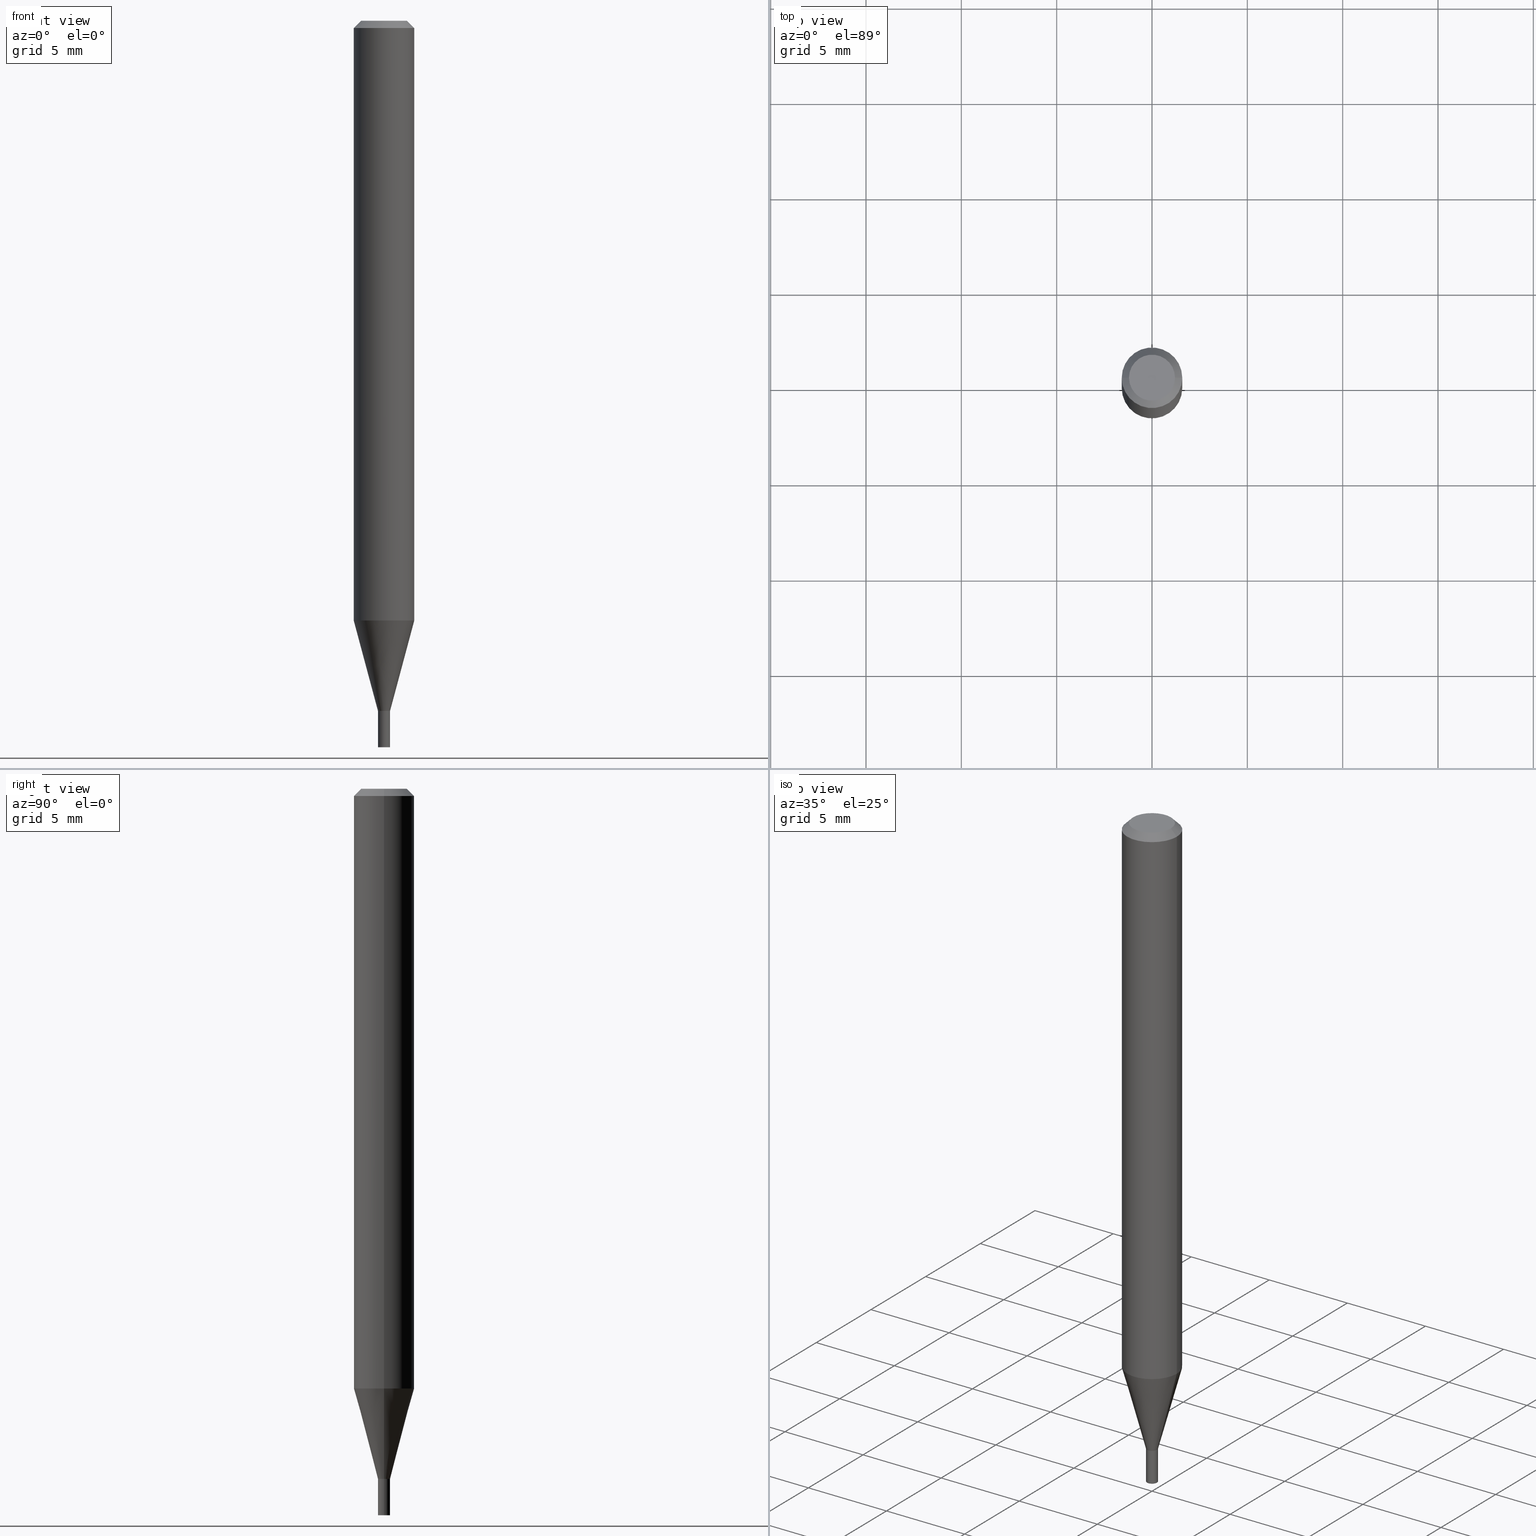
[diagram: canonical four-view strip — front | top / right | iso, engineering-drawing reading convention]
A machine part, canonical four-view strip (front | top / right | iso — engineering-drawing reading convention). The complete STEP part file that produces these views, byte-faithful:
ISO-10303-21;
HEADER;
FILE_DESCRIPTION (( 'STEP AP203' ),
    '1' );
FILE_NAME ('04131.STEP',
    '2024-03-14T17:03:53',
    ( '' ),
    ( '' ),
    'SwSTEP 2.0',
    'SolidWorks 2023',
    '' );
FILE_SCHEMA (( 'CONFIG_CONTROL_DESIGN' ));
ENDSEC;

DATA;
#1 = DATE_TIME_ROLE ( 'creation_date' ) ;
#2 = DIRECTION ( 'NONE',  ( 1.000000000000000000, -6.982962677686270655E-15, 0.000000000000000000 ) ) ;
#3 = DIRECTION ( 'NONE',  ( -2.445468806185136877E-29, 3.491481338843145188E-15, 1.000000000000000000 ) ) ;
#4 = DATE_AND_TIME ( #195, #341 ) ;
#5 = FACE_OUTER_BOUND ( 'NONE', #133, .T. ) ;
#6 = VECTOR ( 'NONE', #405, 39.37007874015748143 ) ;
#7 = ADVANCED_FACE ( 'NONE', ( #67 ), #154, .F. ) ;
#8 = LOCAL_TIME ( 13, 3, 53.00000000000000000, #443 ) ;
#9 = PERSON_AND_ORGANIZATION_ROLE ( 'design_supplier' ) ;
#10 = DIRECTION ( 'NONE',  ( -2.445468806185136597E-29, 3.491481338843145583E-15, 1.000000000000000000 ) ) ;
#11 = CALENDAR_DATE ( 2024, 14, 3 ) ;
#12 = ORIENTED_EDGE ( 'NONE', *, *, #215, .F. ) ;
#13 = PLANE ( 'NONE',  #208 ) ;
#14 = FACE_OUTER_BOUND ( 'NONE', #175, .T. ) ;
#15 = ORIENTED_EDGE ( 'NONE', *, *, #254, .F. ) ;
#16 = AXIS2_PLACEMENT_3D ( 'NONE', #239, #441, #351 ) ;
#17 = CYLINDRICAL_SURFACE ( 'NONE', #344, 0.01249999999999992610 ) ;
#18 = ORIENTED_EDGE ( 'NONE', *, *, #286, .T. ) ;
#19 = ORIENTED_EDGE ( 'NONE', *, *, #124, .T. ) ;
#20 = FACE_OUTER_BOUND ( 'NONE', #287, .T. ) ;
#21 = EDGE_LOOP ( 'NONE', ( #406, #312 ) ) ;
#22 = PRODUCT_RELATED_PRODUCT_CATEGORY ( 'detail', '', ( #348 ) ) ;
#23 = DIRECTION ( 'NONE',  ( 1.000000000000000000, -6.982962677686254089E-15, 0.000000000000000000 ) ) ;
#24 = CLOSED_SHELL ( 'NONE', ( #246, #308, #205, #76, #232, #199, #50, #334, #252, #7, #37, #292 ) ) ;
#25 = AXIS2_PLACEMENT_3D ( 'NONE', #185, #425, #430 ) ;
#26 = EDGE_LOOP ( 'NONE', ( #15, #54, #134, #206 ) ) ;
#27 = LINE ( 'NONE', #253, #135 ) ;
#28 = DIRECTION ( 'NONE',  ( -2.445468806185136877E-29, 3.491481338843145188E-15, 1.000000000000000000 ) ) ;
#29 = CARTESIAN_POINT ( 'NONE',  ( -0.01249999999999965375, -4.886543065881473334E-15, -1.425000000000000266 ) ) ;
#30 = DIRECTION ( 'NONE',  ( -2.438088387897960049E-29, 3.491481338843145188E-15, 1.000000000000000000 ) ) ;
#31 = PERSON_AND_ORGANIZATION_ROLE ( 'design_owner' ) ;
#32 = AXIS2_PLACEMENT_3D ( 'NONE', #316, #42, #280 ) ;
#33 = CC_DESIGN_SECURITY_CLASSIFICATION ( #218, ( #359 ) ) ;
#34 = ORIENTED_EDGE ( 'NONE', *, *, #305, .F. ) ;
#35 = DIRECTION ( 'NONE',  ( -2.445468806185136597E-29, 3.491481338843145583E-15, 1.000000000000000000 ) ) ;
#36 = PERSON_AND_ORGANIZATION_ROLE ( 'classification_officer' ) ;
#37 = ADVANCED_FACE ( 'NONE', ( #327 ), #271, .T. ) ;
#38 = CARTESIAN_POINT ( 'NONE',  ( -0.01250000000000000069, -5.017473616088089257E-15, -1.425000000000000266 ) ) ;
#39 = DIRECTION ( 'NONE',  ( 0.000000000000000000, 0.000000000000000000, 1.000000000000000000 ) ) ;
#40 = CC_DESIGN_DATE_AND_TIME_ASSIGNMENT ( #261, #1, ( #53 ) ) ;
#41 = AXIS2_PLACEMENT_3D ( 'NONE', #336, #140, #114 ) ;
#42 = DIRECTION ( 'NONE',  ( 2.438088387897960049E-29, -3.491481338843145188E-15, -1.000000000000000000 ) ) ;
#43 = APPROVAL_STATUS ( 'not_yet_approved' ) ;
#44 = MANIFOLD_SOLID_BREP ( 'Body-Move/Copy2[2]', #24 ) ;
#45 = AXIS2_PLACEMENT_3D ( 'NONE', #115, #164, #374 ) ;
#46 = AXIS2_PLACEMENT_3D ( 'NONE', #391, #318, #23 ) ;
#47 = CARTESIAN_POINT ( 'NONE',  ( 3.668203209277705088E-31, -5.237222008264718399E-17, -0.01499999999999999944 ) ) ;
#48 = ORIENTED_EDGE ( 'NONE', *, *, #462, .F. ) ;
#49 = CARTESIAN_POINT ( 'NONE',  ( -0.01249999999999992610, 8.881784197001199815E-17, -6.148668862818595618E-31 ) ) ;
#50 = ADVANCED_FACE ( 'NONE', ( #404 ), #221, .T. ) ;
#51 = ORIENTED_EDGE ( 'NONE', *, *, #462, .T. ) ;
#52 = DIRECTION ( 'NONE',  ( -2.445468806185136597E-29, 3.491481338843145583E-15, 1.000000000000000000 ) ) ;
#53 = PRODUCT_DEFINITION ( 'UNKNOWN', '', #359, #259 ) ;
#54 = ORIENTED_EDGE ( 'NONE', *, *, #335, .T. ) ;
#55 = CIRCLE ( 'NONE', #376, 0.04749999999999999362 ) ;
#56 = DIRECTION ( 'NONE',  ( -2.445468806185136877E-29, 3.491481338843145188E-15, 1.000000000000000000 ) ) ;
#57 = ORIENTED_EDGE ( 'NONE', *, *, #125, .T. ) ;
#58 = CARTESIAN_POINT ( 'NONE',  ( 0.01249999999999965375, -5.062647941322559142E-15, -1.425000000000000266 ) ) ;
#59 = ORIENTED_EDGE ( 'NONE', *, *, #79, .T. ) ;
#60 = LINE ( 'NONE', #214, #437 ) ;
#61 = ORIENTED_EDGE ( 'NONE', *, *, #325, .T. ) ;
#62 = AXIS2_PLACEMENT_3D ( 'NONE', #227, #396, #192 ) ;
#63 = APPROVAL ( #402, 'UNSPECIFIED' ) ;
#64 = CARTESIAN_POINT ( 'NONE',  ( 3.484793048813820547E-29, -4.975360907851483175E-15, -1.425000000000000266 ) ) ;
#65 = AXIS2_PLACEMENT_3D ( 'NONE', #333, #436, #2 ) ;
#66 = CC_DESIGN_APPROVAL ( #152, ( #359 ) ) ;
#67 = FACE_OUTER_BOUND ( 'NONE', #21, .T. ) ;
#68 = PERSON ( 'UNSPECIFIED', 'UNSPECIFIED', 'UNSPECIFIED', ('UNSPECIFIED'), ('UNSPECIFIED'), ('UNSPECIFIED') ) ;
#69 = LINE ( 'NONE', #29, #331 ) ;
#70 = CARTESIAN_POINT ( 'NONE',  ( 3.484793048813819426E-29, -4.975360907851482386E-15, -1.425000000000000044 ) ) ;
#71 = APPROVAL_DATE_TIME ( #340, #63 ) ;
#72 = APPLICATION_CONTEXT ( 'configuration controlled 3d designs of mechanical parts and assemblies' ) ;
#73 = DIRECTION ( 'NONE',  ( 1.000000000000000000, -6.982962677686265922E-15, 4.876176775795935793E-29 ) ) ;
#74 = AXIS2_PLACEMENT_3D ( 'NONE', #427, #30, #73 ) ;
#75 = CARTESIAN_POINT ( 'NONE',  ( 0.06250000000000000000, -4.364351673553916694E-16, 3.047610484872459871E-30 ) ) ;
#76 = ADVANCED_FACE ( 'NONE', ( #181 ), #363, .T. ) ;
#77 = CARTESIAN_POINT ( 'NONE',  ( 0.01200000000000000198, -5.059156459983717713E-15, -1.425000000000000044 ) ) ;
#78 = CC_DESIGN_DATE_AND_TIME_ASSIGNMENT ( #435, #297, ( #218 ) ) ;
#79 = EDGE_CURVE ( 'NONE', #421, #211, #101, .T. ) ;
#80 = DIRECTION ( 'NONE',  ( -1.000000000000000000, 6.982962677686266711E-15, 0.000000000000000000 ) ) ;
#81 = UNCERTAINTY_MEASURE_WITH_UNIT (LENGTH_MEASURE( 1.000000000000000082E-05 ), #328, 'distance_accuracy_value', 'NONE');
#82 = SECURITY_CLASSIFICATION_LEVEL ( 'unclassified' ) ;
#83 = AXIS2_PLACEMENT_3D ( 'NONE', #70, #220, #298 ) ;
#84 = DIRECTION ( 'NONE',  ( 1.000000000000000000, -6.982962677686254089E-15, 0.000000000000000000 ) ) ;
#85 = VERTEX_POINT ( 'NONE', #250 ) ;
#86 = ORIENTED_EDGE ( 'NONE', *, *, #272, .F. ) ;
#87 = AXIS2_PLACEMENT_3D ( 'NONE', #186, #434, #461 ) ;
#88 = CARTESIAN_POINT ( 'NONE',  ( 3.668203209277704895E-29, -5.237222008264718177E-15, -1.500000000000000222 ) ) ;
#89 = ORIENTED_EDGE ( 'NONE', *, *, #309, .F. ) ;
#90 = CARTESIAN_POINT ( 'NONE',  ( 0.000000000000000000, 0.000000000000000000, 0.000000000000000000 ) ) ;
#91 = ADVANCED_FACE ( 'NONE', ( #263 ), #258, .F. ) ;
#92 = EDGE_LOOP ( 'NONE', ( #130, #451, #307, #457 ) ) ;
#93 = DIRECTION ( 'NONE',  ( -2.445468806185136597E-29, 3.491481338843145583E-15, 1.000000000000000000 ) ) ;
#94 = ORIENTED_EDGE ( 'NONE', *, *, #305, .T. ) ;
#95 = AXIS2_PLACEMENT_3D ( 'NONE', #88, #450, #380 ) ;
#96 =( NAMED_UNIT ( * ) SI_UNIT ( $, .STERADIAN. ) SOLID_ANGLE_UNIT ( ) );
#97 = ORIENTED_EDGE ( 'NONE', *, *, #162, .T. ) ;
#98 = DIRECTION ( 'NONE',  ( 1.000000000000000000, -6.982962677686261189E-15, 0.000000000000000000 ) ) ;
#99 = EDGE_LOOP ( 'NONE', ( #410, #379 ) ) ;
#100 = LENGTH_MEASURE_WITH_UNIT ( LENGTH_MEASURE( 0.02539999999999999897 ), #458 );
#101 = LINE ( 'NONE', #257, #400 ) ;
#102 = APPROVAL ( #337, 'UNSPECIFIED' ) ;
#103 = AXIS2_PLACEMENT_3D ( 'NONE', #159, #171, #80 ) ;
#104 = FACE_OUTER_BOUND ( 'NONE', #416, .T. ) ;
#105 = CC_DESIGN_APPROVAL ( #63, ( #53 ) ) ;
#106 = DIRECTION ( 'NONE',  ( 1.000000000000000000, -6.982962677686267499E-15, 4.876176775795936353E-29 ) ) ;
#107 = DIRECTION ( 'NONE',  ( 1.000000000000000000, -6.982962677686270655E-15, 0.000000000000000000 ) ) ;
#108 = DIRECTION ( 'NONE',  ( -2.445468806185136597E-29, 3.491481338843145583E-15, 1.000000000000000000 ) ) ;
#109 = COORDINATED_UNIVERSAL_TIME_OFFSET ( 5, 0, .BEHIND. ) ;
#110 = CARTESIAN_POINT ( 'NONE',  ( 0.06250000000000000000, -4.760276787694811076E-15, -1.238397459621555452 ) ) ;
#111 = PERSON_AND_ORGANIZATION ( #68, #465 ) ;
#112 = CIRCLE ( 'NONE', #277, 0.04749999999999999362 ) ;
#113 = AXIS2_PLACEMENT_3D ( 'NONE', #182, #219, #107 ) ;
#114 = DIRECTION ( 'NONE',  ( 1.000000000000000000, -6.982962677686266711E-15, 4.876176775795935793E-29 ) ) ;
#115 = CARTESIAN_POINT ( 'NONE',  ( 0.000000000000000000, 0.000000000000000000, 0.000000000000000000 ) ) ;
#116 = ORIENTED_EDGE ( 'NONE', *, *, #368, .F. ) ;
#117 = PRODUCT_DEFINITION_SHAPE ( 'NONE', 'NONE',  #53 ) ;
#118 = CC_DESIGN_PERSON_AND_ORGANIZATION_ASSIGNMENT ( #111, #224, ( #53 ) ) ;
#119 = CALENDAR_DATE ( 2024, 14, 3 ) ;
#120 = CARTESIAN_POINT ( 'NONE',  ( -0.06250000000000000000, -1.744017710360970627E-15, -0.01499999999999999944 ) ) ;
#121 = VERTEX_POINT ( 'NONE', #300 ) ;
#122 = AXIS2_PLACEMENT_3D ( 'NONE', #439, #52, #382 ) ;
#123 = VERTEX_POINT ( 'NONE', #291 ) ;
#124 = EDGE_CURVE ( 'NONE', #419, #448, #112, .T. ) ;
#125 = EDGE_CURVE ( 'NONE', #267, #231, #398, .T. ) ;
#126 = CARTESIAN_POINT ( 'NONE',  ( -0.01250000000000000069, -5.017473616088089257E-15, -1.500000000000000222 ) ) ;
#127 = ORIENTED_EDGE ( 'NONE', *, *, #286, .F. ) ;
#128 = APPROVAL_PERSON_ORGANIZATION ( #229, #63, #226 ) ;
#129 = DIRECTION ( 'NONE',  ( 1.000000000000000000, -6.982962677686254089E-15, 0.000000000000000000 ) ) ;
#130 = ORIENTED_EDGE ( 'NONE', *, *, #125, .F. ) ;
#131 = EDGE_CURVE ( 'NONE', #321, #121, #196, .T. ) ;
#132 = CARTESIAN_POINT ( 'NONE',  ( 3.483570314410727746E-29, -4.973615167182062460E-15, -1.424500000000000322 ) ) ;
#133 = EDGE_LOOP ( 'NONE', ( #168, #94, #283, #203 ) ) ;
#134 = ORIENTED_EDGE ( 'NONE', *, *, #150, .T. ) ;
#135 = VECTOR ( 'NONE', #249, 39.37007874015748143 ) ;
#136 = DIRECTION ( 'NONE',  ( 1.000000000000000000, -6.982962677686254089E-15, 0.000000000000000000 ) ) ;
#137 = CC_DESIGN_PERSON_AND_ORGANIZATION_ASSIGNMENT ( #256, #31, ( #348 ) ) ;
#138 = VERTEX_POINT ( 'NONE', #110 ) ;
#139 = DIRECTION ( 'NONE',  ( 1.000000000000000000, -6.982962677686266711E-15, 0.000000000000000000 ) ) ;
#140 = DIRECTION ( 'NONE',  ( -2.445468806185136597E-29, 3.491481338843145583E-15, 1.000000000000000000 ) ) ;
#141 = CARTESIAN_POINT ( 'NONE',  ( 0.01250000000000000069, -5.062647941322562298E-15, -1.425000000000000266 ) ) ;
#142 = DIRECTION ( 'NONE',  ( -2.445468806185136877E-29, 3.491481338843145188E-15, 1.000000000000000000 ) ) ;
#143 = ADVANCED_BREP_SHAPE_REPRESENTATION ( '04131', ( #362, #44, #444 ), #156 ) ;
#144 = CIRCLE ( 'NONE', #95, 0.01250000000000000069 ) ;
#145 = CARTESIAN_POINT ( 'NONE',  ( -0.01250000000000019672, -4.884797325212047886E-15, -1.424500000000000322 ) ) ;
#146 = LOCAL_TIME ( 13, 3, 53.00000000000000000, #371 ) ;
#147 = CARTESIAN_POINT ( 'NONE',  ( 3.484793048813819426E-29, -4.975360907851482386E-15, -1.425000000000000044 ) ) ;
#148 = EDGE_CURVE ( 'NONE', #138, #446, #225, .T. ) ;
#149 = APPROVAL_DATE_TIME ( #299, #152 ) ;
#150 = EDGE_CURVE ( 'NONE', #321, #245, #293, .T. ) ;
#151 = DIRECTION ( 'NONE',  ( -2.445468806185136597E-29, 3.491481338843145583E-15, 1.000000000000000000 ) ) ;
#152 = APPROVAL ( #43, 'UNSPECIFIED' ) ;
#153 = APPROVAL_ROLE ( '' ) ;
#154 = PLANE ( 'NONE',  #74 ) ;
#155 = VECTOR ( 'NONE', #296, 39.37007874015748854 ) ;
#156 =( GEOMETRIC_REPRESENTATION_CONTEXT ( 3 ) GLOBAL_UNCERTAINTY_ASSIGNED_CONTEXT ( ( #81 ) ) GLOBAL_UNIT_ASSIGNED_CONTEXT ( ( #328, #210, #96 ) ) REPRESENTATION_CONTEXT ( 'NONE', 'WORKASPACE' ) );
#157 = PLANE ( 'NONE',  #32 ) ;
#158 = COORDINATED_UNIVERSAL_TIME_OFFSET ( 5, 0, .BEHIND. ) ;
#159 = CARTESIAN_POINT ( 'NONE',  ( 3.668203209277705088E-31, -5.237222008264718399E-17, -0.01499999999999999944 ) ) ;
#160 = APPROVAL_ROLE ( '' ) ;
#161 = CONICAL_SURFACE ( 'NONE', #413, 0.01249999999999965375, 0.2617993877991500740 ) ;
#162 = EDGE_CURVE ( 'NONE', #419, #211, #372, .T. ) ;
#163 = ORIENTED_EDGE ( 'NONE', *, *, #124, .F. ) ;
#164 = DIRECTION ( 'NONE',  ( -2.445468806185136597E-29, 3.491481338843145583E-15, 1.000000000000000000 ) ) ;
#165 = ORIENTED_EDGE ( 'NONE', *, *, #184, .F. ) ;
#166 = DIRECTION ( 'NONE',  ( -2.445468806185136597E-29, 3.491481338843145583E-15, 1.000000000000000000 ) ) ;
#167 = EDGE_CURVE ( 'NONE', #123, #345, #183, .T. ) ;
#168 = ORIENTED_EDGE ( 'NONE', *, *, #174, .F. ) ;
#169 = CIRCLE ( 'NONE', #113, 0.06250000000000000000 ) ;
#170 = ADVANCED_FACE ( 'NONE', ( #399 ), #459, .T. ) ;
#171 = DIRECTION ( 'NONE',  ( 2.445468806185136597E-29, -3.491481338843145583E-15, -1.000000000000000000 ) ) ;
#172 = ORIENTED_EDGE ( 'NONE', *, *, #167, .F. ) ;
#173 = EDGE_LOOP ( 'NONE', ( #18, #57, #86, #172 ) ) ;
#174 = EDGE_CURVE ( 'NONE', #448, #419, #55, .T. ) ;
#175 = EDGE_LOOP ( 'NONE', ( #383, #61, #317, #48 ) ) ;
#176 = VECTOR ( 'NONE', #28, 39.37007874015748143 ) ;
#177 = CIRCLE ( 'NONE', #200, 0.01250000000000019672 ) ;
#178 = DIRECTION ( 'NONE',  ( 1.000000000000000000, -6.982962677686294321E-15, 0.000000000000000000 ) ) ;
#179 = EDGE_CURVE ( 'NONE', #138, #421, #235, .T. ) ;
#180 = EDGE_CURVE ( 'NONE', #424, #245, #357, .T. ) ;
#181 = FACE_OUTER_BOUND ( 'NONE', #289, .T. ) ;
#182 = CARTESIAN_POINT ( 'NONE',  ( 3.028462357163431359E-29, -4.323841620339419407E-15, -1.238397459621555452 ) ) ;
#183 = LINE ( 'NONE', #370, #176 ) ;
#184 = EDGE_CURVE ( 'NONE', #267, #123, #302, .T. ) ;
#185 = CARTESIAN_POINT ( 'NONE',  ( 3.668203209277705088E-31, -5.237222008264718399E-17, -0.01499999999999999944 ) ) ;
#186 = CARTESIAN_POINT ( 'NONE',  ( 0.000000000000000000, 0.000000000000000000, 0.000000000000000000 ) ) ;
#187 = APPLICATION_CONTEXT ( 'configuration controlled 3d designs of mechanical parts and assemblies' ) ;
#188 = CIRCLE ( 'NONE', #217, 0.06250000000000000000 ) ;
#189 = CALENDAR_DATE ( 2024, 14, 3 ) ;
#190 = VECTOR ( 'NONE', #56, 39.37007874015748143 ) ;
#191 = DIRECTION ( 'NONE',  ( 1.000000000000000000, -6.982962677686267499E-15, 4.852736867747366768E-29 ) ) ;
#192 = DIRECTION ( 'NONE',  ( 1.000000000000000000, -6.982962677686265922E-15, 4.876176775795935793E-29 ) ) ;
#193 = PERSON_AND_ORGANIZATION_ROLE ( 'creator' ) ;
#194 = DIRECTION ( 'NONE',  ( -1.000000000000000000, 6.982962677686265922E-15, -4.876176775795935793E-29 ) ) ;
#195 = CALENDAR_DATE ( 2024, 14, 3 ) ;
#196 = CIRCLE ( 'NONE', #411, 0.01200000000000000198 ) ;
#197 = DIRECTION ( 'NONE',  ( 1.000000000000000000, -6.982962677686266711E-15, 0.000000000000000000 ) ) ;
#198 = PERSON_AND_ORGANIZATION ( #68, #465 ) ;
#199 = ADVANCED_FACE ( 'NONE', ( #202 ), #161, .T. ) ;
#200 = AXIS2_PLACEMENT_3D ( 'NONE', #323, #389, #98 ) ;
#201 = ORIENTED_EDGE ( 'NONE', *, *, #236, .F. ) ;
#202 = FACE_OUTER_BOUND ( 'NONE', #442, .T. ) ;
#203 = ORIENTED_EDGE ( 'NONE', *, *, #162, .F. ) ;
#204 = CYLINDRICAL_SURFACE ( 'NONE', #45, 0.01249999999999992610 ) ;
#205 = ADVANCED_FACE ( 'NONE', ( #5 ), #385, .T. ) ;
#206 = ORIENTED_EDGE ( 'NONE', *, *, #180, .F. ) ;
#207 = FACE_OUTER_BOUND ( 'NONE', #173, .T. ) ;
#208 = AXIS2_PLACEMENT_3D ( 'NONE', #310, #270, #194 ) ;
#209 = ORIENTED_EDGE ( 'NONE', *, *, #418, .T. ) ;
#210 =( NAMED_UNIT ( * ) PLANE_ANGLE_UNIT ( ) SI_UNIT ( $, .RADIAN. ) );
#211 = VERTEX_POINT ( 'NONE', #120 ) ;
#212 = DIRECTION ( 'NONE',  ( -2.445468806185136597E-29, 3.491481338843145583E-15, 1.000000000000000000 ) ) ;
#213 = ORIENTED_EDGE ( 'NONE', *, *, #301, .T. ) ;
#214 = CARTESIAN_POINT ( 'NONE',  ( 0.01249999999999965375, -5.062647941322559142E-15, -1.425000000000000266 ) ) ;
#215 = EDGE_CURVE ( 'NONE', #446, #211, #188, .T. ) ;
#216 = ORIENTED_EDGE ( 'NONE', *, *, #179, .T. ) ;
#217 = AXIS2_PLACEMENT_3D ( 'NONE', #47, #166, #197 ) ;
#218 = SECURITY_CLASSIFICATION ( '', '', #82 ) ;
#219 = DIRECTION ( 'NONE',  ( -2.445468806185136597E-29, 3.491481338843145583E-15, 1.000000000000000000 ) ) ;
#220 = DIRECTION ( 'NONE',  ( -2.445468806185136597E-29, 3.491481338843145583E-15, 1.000000000000000000 ) ) ;
#221 = CYLINDRICAL_SURFACE ( 'NONE', #87, 0.06250000000000000000 ) ;
#222 = PERSON_AND_ORGANIZATION ( #68, #465 ) ;
#223 = DIRECTION ( 'NONE',  ( -2.445468806185136597E-29, 3.491481338843145583E-15, 1.000000000000000000 ) ) ;
#224 = PERSON_AND_ORGANIZATION_ROLE ( 'creator' ) ;
#225 = LINE ( 'NONE', #75, #330 ) ;
#226 = APPROVAL_ROLE ( '' ) ;
#227 = CARTESIAN_POINT ( 'NONE',  ( 3.576687321579069994E-29, -5.368277968210015545E-15, -1.500000000000000222 ) ) ;
#228 = DIRECTION ( 'NONE',  ( -0.7071067811869503617, 7.493145998871808820E-15, 0.7071067811861444508 ) ) ;
#229 = PERSON_AND_ORGANIZATION ( #68, #465 ) ;
#230 = CIRCLE ( 'NONE', #16, 0.01250000000000000069 ) ;
#231 = VERTEX_POINT ( 'NONE', #38 ) ;
#232 = ADVANCED_FACE ( 'NONE', ( #14 ), #276, .T. ) ;
#233 = ORIENTED_EDGE ( 'NONE', *, *, #150, .F. ) ;
#234 = DIRECTION ( 'NONE',  ( -2.445468806185136597E-29, 3.491481338843145583E-15, 1.000000000000000000 ) ) ;
#235 = CIRCLE ( 'NONE', #65, 0.06250000000000000000 ) ;
#236 = EDGE_CURVE ( 'NONE', #85, #424, #377, .T. ) ;
#237 = CARTESIAN_POINT ( 'NONE',  ( 0.01250000000000019672, -5.060902200653141583E-15, -1.424500000000000322 ) ) ;
#238 = ORIENTED_EDGE ( 'NONE', *, *, #79, .F. ) ;
#239 = CARTESIAN_POINT ( 'NONE',  ( 3.484793048813820547E-29, -4.975360907851483175E-15, -1.425000000000000266 ) ) ;
#240 = ORIENTED_EDGE ( 'NONE', *, *, #180, .T. ) ;
#241 = DIRECTION ( 'NONE',  ( -2.445468806185136597E-29, 3.491481338843145583E-15, 1.000000000000000000 ) ) ;
#242 = VECTOR ( 'NONE', #228, 39.37007874015748854 ) ;
#243 = ORIENTED_EDGE ( 'NONE', *, *, #148, .T. ) ;
#244 = CC_DESIGN_APPROVAL ( #102, ( #218 ) ) ;
#245 = VERTEX_POINT ( 'NONE', #237 ) ;
#246 = ADVANCED_FACE ( 'NONE', ( #313 ), #204, .F. ) ;
#247 = DIRECTION ( 'NONE',  ( -2.445468806185136597E-29, 3.491481338843145583E-15, 1.000000000000000000 ) ) ;
#248 = ORIENTED_EDGE ( 'NONE', *, *, #418, .F. ) ;
#249 = DIRECTION ( 'NONE',  ( 0.7071067811865676678, -7.319954787623323887E-15, -0.7071067811865273667 ) ) ;
#250 = CARTESIAN_POINT ( 'NONE',  ( -0.01249999999999965375, -4.383147738185414668E-15, -1.425000000000000266 ) ) ;
#251 = LOCAL_TIME ( 13, 3, 53.00000000000000000, #158 ) ;
#252 = ADVANCED_FACE ( 'NONE', ( #414 ), #13, .F. ) ;
#253 = CARTESIAN_POINT ( 'NONE',  ( 0.06250000000000000000, -4.811533449433679005E-16, -0.01499999999999999944 ) ) ;
#254 = EDGE_CURVE ( 'NONE', #121, #424, #447, .T. ) ;
#255 = DIRECTION ( 'NONE',  ( 1.000000000000000000, -6.982962677686250144E-15, 0.000000000000000000 ) ) ;
#256 = PERSON_AND_ORGANIZATION ( #68, #465 ) ;
#257 = CARTESIAN_POINT ( 'NONE',  ( -0.06250000000000000000, 4.440892098500626162E-16, -3.074334431409316114E-30 ) ) ;
#258 = PLANE ( 'NONE',  #62 ) ;
#259 = DESIGN_CONTEXT ( 'detailed design', #72, 'design' ) ;
#260 = AXIS2_PLACEMENT_3D ( 'NONE', #338, #93, #139 ) ;
#261 = DATE_AND_TIME ( #375, #146 ) ;
#262 = CIRCLE ( 'NONE', #367, 0.01249999999999965375 ) ;
#263 = FACE_OUTER_BOUND ( 'NONE', #343, .T. ) ;
#264 = ADVANCED_FACE ( 'NONE', ( #275 ), #157, .F. ) ;
#265 = APPROVAL_DATE_TIME ( #4, #102 ) ;
#266 = DIRECTION ( 'NONE',  ( 1.000000000000000000, -6.982962677686261189E-15, 0.000000000000000000 ) ) ;
#267 = VERTEX_POINT ( 'NONE', #126 ) ;
#268 = PERSON_AND_ORGANIZATION ( #68, #465 ) ;
#269 = ADVANCED_FACE ( 'NONE', ( #207 ), #409, .T. ) ;
#270 = DIRECTION ( 'NONE',  ( 2.438088387897960049E-29, -3.491481338843145188E-15, -1.000000000000000000 ) ) ;
#271 = CONICAL_SURFACE ( 'NONE', #83, 0.01200000000000000198, 0.7853981633980181565 ) ;
#272 = EDGE_CURVE ( 'NONE', #345, #231, #230, .T. ) ;
#273 = LOCAL_TIME ( 13, 3, 53.00000000000000000, #408 ) ;
#274 = ORIENTED_EDGE ( 'NONE', *, *, #131, .T. ) ;
#275 = FACE_OUTER_BOUND ( 'NONE', #99, .T. ) ;
#276 = CONICAL_SURFACE ( 'NONE', #339, 0.01249999999999965375, 0.2617993877991500740 ) ;
#277 = AXIS2_PLACEMENT_3D ( 'NONE', #365, #151, #329 ) ;
#278 = AXIS2_PLACEMENT_3D ( 'NONE', #460, #212, #284 ) ;
#279 = ORIENTED_EDGE ( 'NONE', *, *, #311, .F. ) ;
#280 = DIRECTION ( 'NONE',  ( -1.000000000000000000, 6.982962677686265922E-15, -4.876176775795935793E-29 ) ) ;
#281 = EDGE_LOOP ( 'NONE', ( #248, #381, #240, #279 ) ) ;
#282 = CARTESIAN_POINT ( 'NONE',  ( 0.000000000000000000, 0.000000000000000000, 0.000000000000000000 ) ) ;
#283 = ORIENTED_EDGE ( 'NONE', *, *, #215, .T. ) ;
#284 = DIRECTION ( 'NONE',  ( 1.000000000000000000, -6.982962677686250144E-15, 0.000000000000000000 ) ) ;
#285 = CIRCLE ( 'NONE', #260, 0.06250000000000000000 ) ;
#286 = EDGE_CURVE ( 'NONE', #123, #267, #144, .T. ) ;
#287 = EDGE_LOOP ( 'NONE', ( #274, #358, #116, #233 ) ) ;
#288 = CARTESIAN_POINT ( 'NONE',  ( -0.04749999999999999362, 3.578768372314195715E-16, -8.506713692488727040E-16 ) ) ;
#289 = EDGE_LOOP ( 'NONE', ( #216, #59, #12, #347 ) ) ;
#290 = CARTESIAN_POINT ( 'NONE',  ( 3.484793048813819426E-29, -4.975360907851482386E-15, -1.425000000000000044 ) ) ;
#291 = CARTESIAN_POINT ( 'NONE',  ( 0.01250000000000000069, -5.324509041735797299E-15, -1.500000000000000222 ) ) ;
#292 = ADVANCED_FACE ( 'NONE', ( #349 ), #17, .F. ) ;
#293 = LINE ( 'NONE', #77, #155 ) ;
#294 = APPROVAL_PERSON_ORGANIZATION ( #222, #152, #160 ) ;
#295 = DIRECTION ( 'NONE',  ( 1.000000000000000000, -6.982962677686250144E-15, 0.000000000000000000 ) ) ;
#296 = DIRECTION ( 'NONE',  ( 0.7071067811869503617, -2.468850131086477072E-15, 0.7071067811861444508 ) ) ;
#297 = DATE_TIME_ROLE ( 'classification_date' ) ;
#298 = DIRECTION ( 'NONE',  ( 1.000000000000000000, -6.982962677686250144E-15, 0.000000000000000000 ) ) ;
#299 = DATE_AND_TIME ( #119, #251 ) ;
#300 = CARTESIAN_POINT ( 'NONE',  ( -0.01200000000000000198, -4.887446552386159087E-15, -1.425000000000000044 ) ) ;
#301 = EDGE_CURVE ( 'NONE', #211, #446, #285, .T. ) ;
#302 = CIRCLE ( 'NONE', #122, 0.01250000000000000069 ) ;
#303 = CONICAL_SURFACE ( 'NONE', #415, 0.01200000000000000198, 0.7853981633980181565 ) ;
#304 = DIRECTION ( 'NONE',  ( -2.445468806185136597E-29, 3.491481338843145583E-15, 1.000000000000000000 ) ) ;
#305 = EDGE_CURVE ( 'NONE', #448, #446, #27, .T. ) ;
#306 = DIRECTION ( 'NONE',  ( 1.000000000000000000, -6.982962677686267499E-15, 4.876176775795936353E-29 ) ) ;
#307 = ORIENTED_EDGE ( 'NONE', *, *, #167, .T. ) ;
#308 = ADVANCED_FACE ( 'NONE', ( #20 ), #303, .T. ) ;
#309 = EDGE_CURVE ( 'NONE', #319, #85, #455, .T. ) ;
#310 = CARTESIAN_POINT ( 'NONE',  ( 3.316907271900976096E-16, 0.04749999999999999362, -5.911810482194846144E-16 ) ) ;
#311 = EDGE_CURVE ( 'NONE', #319, #245, #384, .T. ) ;
#312 = ORIENTED_EDGE ( 'NONE', *, *, #335, .F. ) ;
#313 = FACE_OUTER_BOUND ( 'NONE', #281, .T. ) ;
#314 = AXIS2_PLACEMENT_3D ( 'NONE', #429, #35, #106 ) ;
#315 = ORIENTED_EDGE ( 'NONE', *, *, #431, .T. ) ;
#316 = CARTESIAN_POINT ( 'NONE',  ( 8.728703347111317935E-17, 0.01249999999999502551, -1.425000000000000266 ) ) ;
#317 = ORIENTED_EDGE ( 'NONE', *, *, #179, .F. ) ;
#318 = DIRECTION ( 'NONE',  ( -2.445468806185136597E-29, 3.491481338843145583E-15, 1.000000000000000000 ) ) ;
#319 = VERTEX_POINT ( 'NONE', #58 ) ;
#320 = VECTOR ( 'NONE', #361, 39.37007874015748143 ) ;
#321 = VERTEX_POINT ( 'NONE', #395 ) ;
#322 = AXIS2_PLACEMENT_3D ( 'NONE', #64, #452, #178 ) ;
#323 = CARTESIAN_POINT ( 'NONE',  ( 3.483570314410727746E-29, -4.973615167182062460E-15, -1.424500000000000322 ) ) ;
#324 = CARTESIAN_POINT ( 'NONE',  ( -0.06250000000000000000, 3.840629472727444916E-16, -0.01499999999999999944 ) ) ;
#325 = EDGE_CURVE ( 'NONE', #85, #421, #69, .T. ) ;
#326 = CARTESIAN_POINT ( 'NONE',  ( 0.01249999999999992610, -8.728703347107782852E-17, 6.095220969744883833E-31 ) ) ;
#327 = FACE_OUTER_BOUND ( 'NONE', #26, .T. ) ;
#328 =( CONVERSION_BASED_UNIT ( 'INCH', #100 ) LENGTH_UNIT ( ) NAMED_UNIT ( #403 ) );
#329 = DIRECTION ( 'NONE',  ( 1.000000000000000000, -6.982962677686267499E-15, 4.852736867747366768E-29 ) ) ;
#330 = VECTOR ( 'NONE', #142, 39.37007874015748143 ) ;
#331 = VECTOR ( 'NONE', #428, 39.37007874015747433 ) ;
#332 = CARTESIAN_POINT ( 'NONE',  ( 0.000000000000000000, 0.000000000000000000, 0.000000000000000000 ) ) ;
#333 = CARTESIAN_POINT ( 'NONE',  ( 3.028462357163431359E-29, -4.323841620339419407E-15, -1.238397459621555452 ) ) ;
#334 = ADVANCED_FACE ( 'NONE', ( #104 ), #378, .T. ) ;
#335 = EDGE_CURVE ( 'NONE', #121, #321, #386, .T. ) ;
#336 = CARTESIAN_POINT ( 'NONE',  ( 0.000000000000000000, 0.000000000000000000, 0.000000000000000000 ) ) ;
#337 = APPROVAL_STATUS ( 'not_yet_approved' ) ;
#338 = CARTESIAN_POINT ( 'NONE',  ( 3.668203209277705088E-31, -5.237222008264718399E-17, -0.01499999999999999944 ) ) ;
#339 = AXIS2_PLACEMENT_3D ( 'NONE', #342, #304, #84 ) ;
#340 = DATE_AND_TIME ( #11, #273 ) ;
#341 = LOCAL_TIME ( 13, 3, 53.00000000000000000, #109 ) ;
#342 = CARTESIAN_POINT ( 'NONE',  ( 3.484793048813820547E-29, -4.975360907851483175E-15, -1.425000000000000266 ) ) ;
#343 = EDGE_LOOP ( 'NONE', ( #127, #165 ) ) ;
#344 = AXIS2_PLACEMENT_3D ( 'NONE', #282, #241, #420 ) ;
#345 = VERTEX_POINT ( 'NONE', #141 ) ;
#346 = DIRECTION ( 'NONE',  ( -2.445468806185136597E-29, 3.491481338843145583E-15, 1.000000000000000000 ) ) ;
#347 = ORIENTED_EDGE ( 'NONE', *, *, #148, .F. ) ;
#348 = PRODUCT ( '04131', '04131', '', ( #397 ) ) ;
#349 = FACE_OUTER_BOUND ( 'NONE', #387, .T. ) ;
#350 = ORIENTED_EDGE ( 'NONE', *, *, #301, .F. ) ;
#351 = DIRECTION ( 'NONE',  ( 1.000000000000000000, -6.982962677686294321E-15, 0.000000000000000000 ) ) ;
#352 = EDGE_LOOP ( 'NONE', ( #19, #353 ) ) ;
#353 = ORIENTED_EDGE ( 'NONE', *, *, #174, .T. ) ;
#354 = CARTESIAN_POINT ( 'NONE',  ( 3.484793048813820547E-29, -4.975360907851483175E-15, -1.425000000000000266 ) ) ;
#355 = EDGE_LOOP ( 'NONE', ( #238, #315, #243, #350 ) ) ;
#356 = DIRECTION ( 'NONE',  ( 0.2588190451025213501, 1.565188264969621968E-15, 0.9659258262890682012 ) ) ;
#357 = CIRCLE ( 'NONE', #366, 0.01250000000000019672 ) ;
#358 = ORIENTED_EDGE ( 'NONE', *, *, #254, .T. ) ;
#359 = PRODUCT_DEFINITION_FORMATION_WITH_SPECIFIED_SOURCE ( 'ANY', '', #348, .NOT_KNOWN. ) ;
#360 = CARTESIAN_POINT ( 'NONE',  ( 0.06250000000000000000, -4.888073874380388472E-16, -0.01499999999999999944 ) ) ;
#361 = DIRECTION ( 'NONE',  ( -0.7071067811865676678, 2.468850131082468081E-15, -0.7071067811865273667 ) ) ;
#362 = MANIFOLD_SOLID_BREP ( 'Body-Move/Copy2[1]', #464 ) ;
#363 = CYLINDRICAL_SURFACE ( 'NONE', #41, 0.06250000000000000000 ) ;
#364 = APPLICATION_PROTOCOL_DEFINITION ( 'international standard', 'config_control_design', 1994, #72 ) ;
#365 = CARTESIAN_POINT ( 'NONE',  ( 2.080290297812910479E-44, -2.970103211220577886E-30, -8.506713692488703374E-16 ) ) ;
#366 = AXIS2_PLACEMENT_3D ( 'NONE', #132, #234, #266 ) ;
#367 = AXIS2_PLACEMENT_3D ( 'NONE', #354, #454, #136 ) ;
#368 = EDGE_CURVE ( 'NONE', #245, #424, #177, .T. ) ;
#369 = PERSON_AND_ORGANIZATION ( #68, #465 ) ;
#370 = CARTESIAN_POINT ( 'NONE',  ( 0.01250000000000000069, -8.728703347107834621E-17, 6.095220969744920617E-31 ) ) ;
#371 = COORDINATED_UNIVERSAL_TIME_OFFSET ( 5, 0, .BEHIND. ) ;
#372 = LINE ( 'NONE', #324, #320 ) ;
#373 = APPLICATION_PROTOCOL_DEFINITION ( 'international standard', 'config_control_design', 1994, #187 ) ;
#374 = DIRECTION ( 'NONE',  ( 1.000000000000000000, -6.982962677686267499E-15, 4.876176775795935793E-29 ) ) ;
#375 = CALENDAR_DATE ( 2024, 14, 3 ) ;
#376 = AXIS2_PLACEMENT_3D ( 'NONE', #432, #108, #191 ) ;
#377 = LINE ( 'NONE', #49, #6 ) ;
#378 = CONICAL_SURFACE ( 'NONE', #25, 0.06250000000000000000, 0.7853981633974768117 ) ;
#379 = ORIENTED_EDGE ( 'NONE', *, *, #407, .T. ) ;
#380 = DIRECTION ( 'NONE',  ( 1.000000000000000000, -6.982962677686294321E-15, 0.000000000000000000 ) ) ;
#381 = ORIENTED_EDGE ( 'NONE', *, *, #236, .T. ) ;
#382 = DIRECTION ( 'NONE',  ( 1.000000000000000000, -6.982962677686294321E-15, 0.000000000000000000 ) ) ;
#383 = ORIENTED_EDGE ( 'NONE', *, *, #309, .T. ) ;
#384 = LINE ( 'NONE', #326, #190 ) ;
#385 = CONICAL_SURFACE ( 'NONE', #103, 0.06250000000000000000, 0.7853981633974768117 ) ;
#386 = CIRCLE ( 'NONE', #278, 0.01200000000000000198 ) ;
#387 = EDGE_LOOP ( 'NONE', ( #201, #89, #426, #390 ) ) ;
#388 = ORIENTED_EDGE ( 'NONE', *, *, #431, .F. ) ;
#389 = DIRECTION ( 'NONE',  ( -2.445468806185136597E-29, 3.491481338843145583E-15, 1.000000000000000000 ) ) ;
#390 = ORIENTED_EDGE ( 'NONE', *, *, #368, .T. ) ;
#391 = CARTESIAN_POINT ( 'NONE',  ( 3.484793048813820547E-29, -4.975360907851483175E-15, -1.425000000000000266 ) ) ;
#392 = CC_DESIGN_PERSON_AND_ORGANIZATION_ASSIGNMENT ( #198, #193, ( #359 ) ) ;
#393 = VECTOR ( 'NONE', #466, 39.37007874015748143 ) ;
#394 = CARTESIAN_POINT ( 'NONE',  ( -0.01250000000000000069, 8.881784197001252816E-17, -6.148668862818633278E-31 ) ) ;
#395 = CARTESIAN_POINT ( 'NONE',  ( 0.01200000000000000198, -5.059156459983717713E-15, -1.425000000000000044 ) ) ;
#396 = DIRECTION ( 'NONE',  ( -2.438088387897960049E-29, 3.491481338843145188E-15, 1.000000000000000000 ) ) ;
#397 = MECHANICAL_CONTEXT ( 'NONE', #187, 'mechanical' ) ;
#398 = LINE ( 'NONE', #394, #393 ) ;
#399 = FACE_OUTER_BOUND ( 'NONE', #92, .T. ) ;
#400 = VECTOR ( 'NONE', #3, 39.37007874015748143 ) ;
#401 = APPROVAL_PERSON_ORGANIZATION ( #433, #102, #153 ) ;
#402 = APPROVAL_STATUS ( 'not_yet_approved' ) ;
#403 = DIMENSIONAL_EXPONENTS ( 1.000000000000000000, 0.000000000000000000, 0.000000000000000000, 0.000000000000000000, 0.000000000000000000, 0.000000000000000000, 0.000000000000000000 ) ;
#404 = FACE_OUTER_BOUND ( 'NONE', #355, .T. ) ;
#405 = DIRECTION ( 'NONE',  ( -2.445468806185136877E-29, 3.491481338843145188E-15, 1.000000000000000000 ) ) ;
#406 = ORIENTED_EDGE ( 'NONE', *, *, #131, .F. ) ;
#407 = EDGE_CURVE ( 'NONE', #231, #345, #456, .T. ) ;
#408 = COORDINATED_UNIVERSAL_TIME_OFFSET ( 5, 0, .BEHIND. ) ;
#409 = CYLINDRICAL_SURFACE ( 'NONE', #423, 0.01250000000000000069 ) ;
#410 = ORIENTED_EDGE ( 'NONE', *, *, #272, .T. ) ;
#411 = AXIS2_PLACEMENT_3D ( 'NONE', #147, #223, #255 ) ;
#412 = CC_DESIGN_PERSON_AND_ORGANIZATION_ASSIGNMENT ( #268, #9, ( #359 ) ) ;
#413 = AXIS2_PLACEMENT_3D ( 'NONE', #417, #346, #129 ) ;
#414 = FACE_OUTER_BOUND ( 'NONE', #352, .T. ) ;
#415 = AXIS2_PLACEMENT_3D ( 'NONE', #290, #247, #295 ) ;
#416 = EDGE_LOOP ( 'NONE', ( #34, #163, #97, #213 ) ) ;
#417 = CARTESIAN_POINT ( 'NONE',  ( 3.484793048813820547E-29, -4.975360907851483175E-15, -1.425000000000000266 ) ) ;
#418 = EDGE_CURVE ( 'NONE', #85, #319, #262, .T. ) ;
#419 = VERTEX_POINT ( 'NONE', #288 ) ;
#420 = DIRECTION ( 'NONE',  ( 1.000000000000000000, -6.982962677686267499E-15, 4.876176775795935793E-29 ) ) ;
#421 = VERTEX_POINT ( 'NONE', #463 ) ;
#422 = CARTESIAN_POINT ( 'NONE',  ( 0.04749999999999999362, -4.035134999187593414E-16, -8.506713692488677736E-16 ) ) ;
#423 = AXIS2_PLACEMENT_3D ( 'NONE', #90, #10, #306 ) ;
#424 = VERTEX_POINT ( 'NONE', #145 ) ;
#425 = DIRECTION ( 'NONE',  ( 2.445468806185136597E-29, -3.491481338843145583E-15, -1.000000000000000000 ) ) ;
#426 = ORIENTED_EDGE ( 'NONE', *, *, #311, .T. ) ;
#427 = CARTESIAN_POINT ( 'NONE',  ( 3.484793048813820547E-29, -4.975360907851483175E-15, -1.425000000000000266 ) ) ;
#428 = DIRECTION ( 'NONE',  ( -0.2588190451025213501, 5.211531920934551042E-15, 0.9659258262890682012 ) ) ;
#429 = CARTESIAN_POINT ( 'NONE',  ( 0.000000000000000000, 0.000000000000000000, 0.000000000000000000 ) ) ;
#430 = DIRECTION ( 'NONE',  ( -1.000000000000000000, 6.982962677686266711E-15, 0.000000000000000000 ) ) ;
#431 = EDGE_CURVE ( 'NONE', #421, #138, #169, .T. ) ;
#432 = CARTESIAN_POINT ( 'NONE',  ( 2.080290297812910479E-44, -2.970103211220577886E-30, -8.506713692488703374E-16 ) ) ;
#433 = PERSON_AND_ORGANIZATION ( #68, #465 ) ;
#434 = DIRECTION ( 'NONE',  ( -2.445468806185136597E-29, 3.491481338843145583E-15, 1.000000000000000000 ) ) ;
#435 = DATE_AND_TIME ( #189, #8 ) ;
#436 = DIRECTION ( 'NONE',  ( -2.445468806185136597E-29, 3.491481338843145583E-15, 1.000000000000000000 ) ) ;
#437 = VECTOR ( 'NONE', #356, 39.37007874015747433 ) ;
#438 = SHAPE_DEFINITION_REPRESENTATION ( #117, #143 ) ;
#439 = CARTESIAN_POINT ( 'NONE',  ( 3.668203209277704895E-29, -5.237222008264718177E-15, -1.500000000000000222 ) ) ;
#440 = DIRECTION ( 'NONE',  ( 1.000000000000000000, 0.000000000000000000, 0.000000000000000000 ) ) ;
#441 = DIRECTION ( 'NONE',  ( -2.445468806185136597E-29, 3.491481338843145583E-15, 1.000000000000000000 ) ) ;
#442 = EDGE_LOOP ( 'NONE', ( #453, #209, #51, #388 ) ) ;
#443 = COORDINATED_UNIVERSAL_TIME_OFFSET ( 5, 0, .BEHIND. ) ;
#444 = AXIS2_PLACEMENT_3D ( 'NONE', #332, #39, #440 ) ;
#445 = CARTESIAN_POINT ( 'NONE',  ( -0.01200000000000000198, -4.890095779560270288E-15, -1.425000000000000044 ) ) ;
#446 = VERTEX_POINT ( 'NONE', #360 ) ;
#447 = LINE ( 'NONE', #445, #242 ) ;
#448 = VERTEX_POINT ( 'NONE', #422 ) ;
#449 = CC_DESIGN_PERSON_AND_ORGANIZATION_ASSIGNMENT ( #369, #36, ( #218 ) ) ;
#450 = DIRECTION ( 'NONE',  ( -2.445468806185136597E-29, 3.491481338843145583E-15, 1.000000000000000000 ) ) ;
#451 = ORIENTED_EDGE ( 'NONE', *, *, #184, .T. ) ;
#452 = DIRECTION ( 'NONE',  ( -2.445468806185136597E-29, 3.491481338843145583E-15, 1.000000000000000000 ) ) ;
#453 = ORIENTED_EDGE ( 'NONE', *, *, #325, .F. ) ;
#454 = DIRECTION ( 'NONE',  ( -2.445468806185136597E-29, 3.491481338843145583E-15, 1.000000000000000000 ) ) ;
#455 = CIRCLE ( 'NONE', #46, 0.01249999999999965375 ) ;
#456 = CIRCLE ( 'NONE', #322, 0.01250000000000000069 ) ;
#457 = ORIENTED_EDGE ( 'NONE', *, *, #407, .F. ) ;
#458 =( LENGTH_UNIT ( ) NAMED_UNIT ( * ) SI_UNIT ( $, .METRE. ) );
#459 = CYLINDRICAL_SURFACE ( 'NONE', #314, 0.01250000000000000069 ) ;
#460 = CARTESIAN_POINT ( 'NONE',  ( 3.484793048813819426E-29, -4.975360907851482386E-15, -1.425000000000000044 ) ) ;
#461 = DIRECTION ( 'NONE',  ( 1.000000000000000000, -6.982962677686266711E-15, 4.876176775795935793E-29 ) ) ;
#462 = EDGE_CURVE ( 'NONE', #319, #138, #60, .T. ) ;
#463 = CARTESIAN_POINT ( 'NONE',  ( -0.06250000000000000000, -3.879752410489356791E-15, -1.238397459621555452 ) ) ;
#464 = CLOSED_SHELL ( 'NONE', ( #269, #91, #170, #264 ) ) ;
#465 = ORGANIZATION ( 'UNSPECIFIED', 'UNSPECIFIED', '' ) ;
#466 = DIRECTION ( 'NONE',  ( -2.445468806185136877E-29, 3.491481338843145188E-15, 1.000000000000000000 ) ) ;
ENDSEC;
END-ISO-10303-21;
